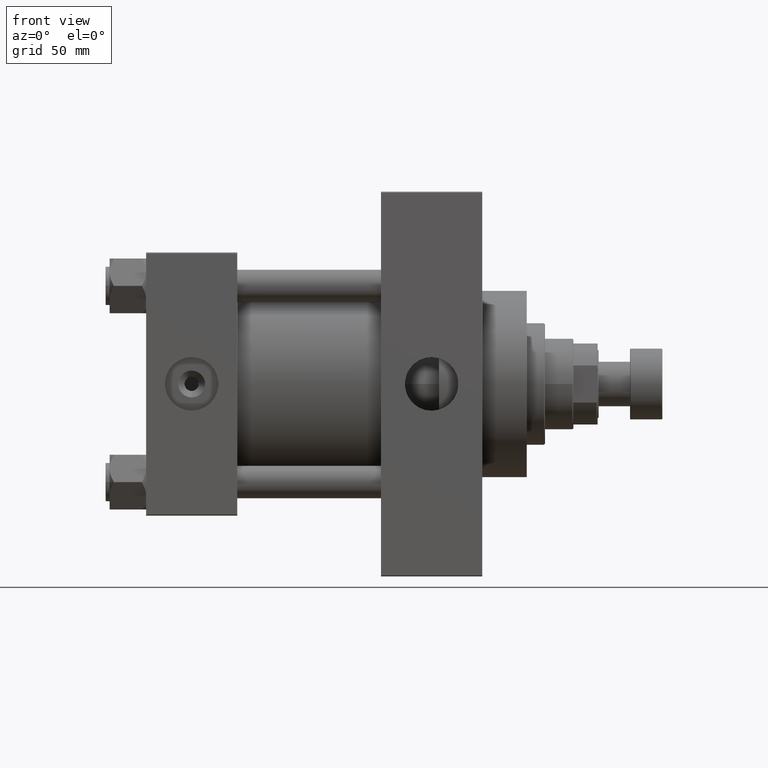
[diagram: clean part render]
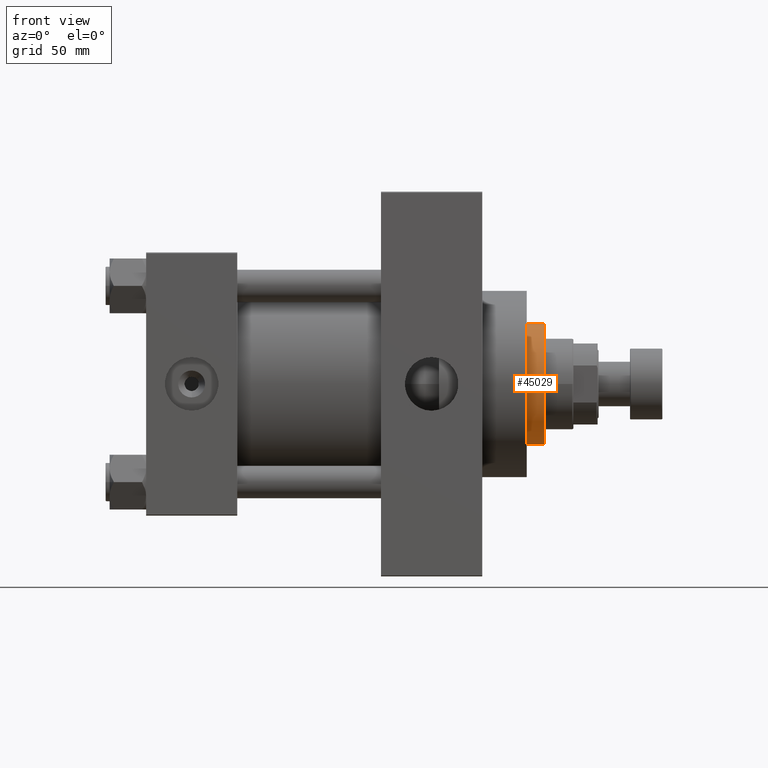
[diagram: same view with one face highlighted and labeled with its STEP entity id]
A machine part, front view. The second image highlights one B-rep face of the part: STEP entity #45029.
In plain terms, the highlighted cylindrical surface (partial cylindrical patch) has radius 30 mm, axis along (-1, 0, 0).
Its self-contained STEP definition (entity closure, byte-faithful):
#507 = FACE_OUTER_BOUND ( 'NONE', #7228, .T. ) ;
#3476 = VECTOR ( 'NONE', #22872, 1000.000000000000000 ) ;
#5235 = VERTEX_POINT ( 'NONE', #27694 ) ;
#6461 = CARTESIAN_POINT ( 'NONE',  ( 0.000000000000000000, 0.000000000000000000, 51.75999999999999091 ) ) ;
#7228 = EDGE_LOOP ( 'NONE', ( #27094, #9563, #22917, #33816 ) ) ;
#7382 = CARTESIAN_POINT ( 'NONE',  ( 30.00000000000000000, 3.673940397442059178E-15, 52.25999999999999801 ) ) ;
#7594 = LINE ( 'NONE', #7847, #21446 ) ;
#7847 = CARTESIAN_POINT ( 'NONE',  ( -30.00000000000000000, 0.000000000000000000, 52.25999999999999801 ) ) ;
#9563 = ORIENTED_EDGE ( 'NONE', *, *, #10493, .T. ) ;
#10493 = EDGE_CURVE ( 'NONE', #48581, #44124, #42153, .T. ) ;
#10737 = AXIS2_PLACEMENT_3D ( 'NONE', #35062, #32246, #47493 ) ;
#12791 = CIRCLE ( 'NONE', #24964, 30.00000000000000000 ) ;
#12818 = EDGE_CURVE ( 'NONE', #5235, #30149, #7594, .T. ) ;
#18023 = DIRECTION ( 'NONE',  ( 1.000000000000000000, 0.000000000000000000, 0.000000000000000000 ) ) ;
#19303 = CARTESIAN_POINT ( 'NONE',  ( -30.00000000000000000, 0.000000000000000000, 43.25999999999999801 ) ) ;
#21446 = VECTOR ( 'NONE', #45936, 1000.000000000000000 ) ;
#22872 = DIRECTION ( 'NONE',  ( -0.000000000000000000, -0.000000000000000000, -1.000000000000000000 ) ) ;
#22917 = ORIENTED_EDGE ( 'NONE', *, *, #24421, .T. ) ;
#24421 = EDGE_CURVE ( 'NONE', #44124, #30149, #12791, .T. ) ;
#24964 = AXIS2_PLACEMENT_3D ( 'NONE', #48490, #28946, #18023 ) ;
#27094 = ORIENTED_EDGE ( 'NONE', *, *, #41056, .T. ) ;
#27694 = CARTESIAN_POINT ( 'NONE',  ( -30.00000000000000000, 0.000000000000000000, 51.75999999999999091 ) ) ;
#28946 = DIRECTION ( 'NONE',  ( 0.000000000000000000, 0.000000000000000000, 1.000000000000000000 ) ) ;
#29321 = DIRECTION ( 'NONE',  ( 0.000000000000000000, 0.000000000000000000, -1.000000000000000000 ) ) ;
#30059 = DIRECTION ( 'NONE',  ( 1.000000000000000000, 0.000000000000000000, 0.000000000000000000 ) ) ;
#30149 = VERTEX_POINT ( 'NONE', #19303 ) ;
#32246 = DIRECTION ( 'NONE',  ( -0.000000000000000000, -0.000000000000000000, -1.000000000000000000 ) ) ;
#32329 = CARTESIAN_POINT ( 'NONE',  ( 30.00000000000000000, 3.673940397442059178E-15, 51.75999999999999091 ) ) ;
#32467 = CIRCLE ( 'NONE', #49522, 30.00000000000000000 ) ;
#33816 = ORIENTED_EDGE ( 'NONE', *, *, #12818, .F. ) ;
#35062 = CARTESIAN_POINT ( 'NONE',  ( 0.000000000000000000, 0.000000000000000000, 52.25999999999999801 ) ) ;
#39624 = CYLINDRICAL_SURFACE ( 'NONE', #10737, 30.00000000000000000 ) ;
#41056 = EDGE_CURVE ( 'NONE', #5235, #48581, #32467, .T. ) ;
#42153 = LINE ( 'NONE', #7382, #3476 ) ;
#44124 = VERTEX_POINT ( 'NONE', #49488 ) ;
#45029 = ADVANCED_FACE ( 'NONE', ( #507 ), #39624, .T. ) ;
#45936 = DIRECTION ( 'NONE',  ( -0.000000000000000000, -0.000000000000000000, -1.000000000000000000 ) ) ;
#47493 = DIRECTION ( 'NONE',  ( -1.000000000000000000, 0.000000000000000000, 0.000000000000000000 ) ) ;
#48490 = CARTESIAN_POINT ( 'NONE',  ( 0.000000000000000000, 0.000000000000000000, 43.25999999999999801 ) ) ;
#48581 = VERTEX_POINT ( 'NONE', #32329 ) ;
#49488 = CARTESIAN_POINT ( 'NONE',  ( 30.00000000000000000, 3.673940397442059178E-15, 43.25999999999999801 ) ) ;
#49522 = AXIS2_PLACEMENT_3D ( 'NONE', #6461, #29321, #30059 ) ;